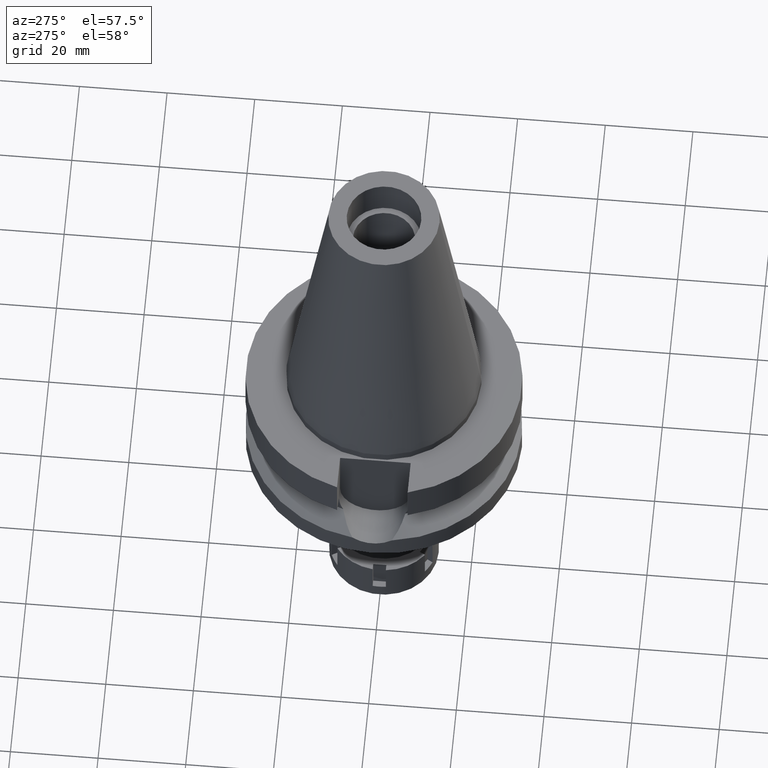
[diagram: clean part render]
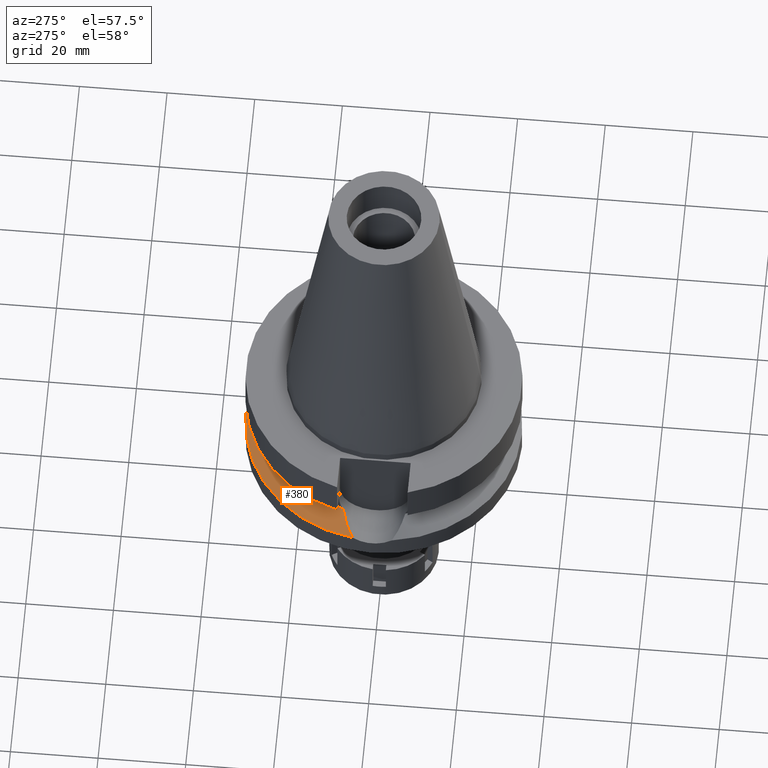
[diagram: same view with one face highlighted and labeled with its STEP entity id]
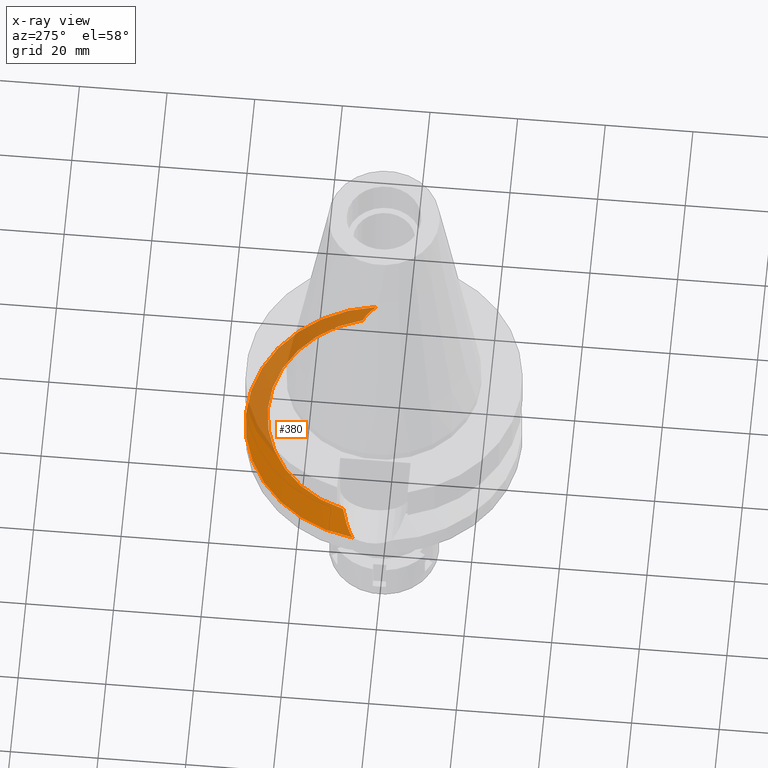
[diagram: x-ray of the same camera — body ghosted, the highlighted face saturated]
A machine part, auxiliary view. The second image highlights one B-rep face of the part: STEP entity #380.
The next image is the same camera in x-ray: the body ghosted, the highlighted face saturated — about 47% of this face is hidden behind the body in this view.
In plain terms, the highlighted conical surface has half-angle 60 deg.
Its self-contained STEP definition (entity closure, byte-faithful):
#8 = CARTESIAN_POINT ( 'NONE',  ( 27.91858543561856720, 6.325525758491624018, -19.97141142201497388 ) ) ;
#107 = ORIENTED_EDGE ( 'NONE', *, *, #3382, .F. ) ;
#115 = DIRECTION ( 'NONE',  ( 0.0000000000000000000, 0.0000000000000000000, -1.000000000000000000 ) ) ;
#133 = CARTESIAN_POINT ( 'NONE',  ( -28.73703696739598712, 5.934423697149298071, -20.38937565646276440 ) ) ;
#171 = CARTESIAN_POINT ( 'NONE',  ( -27.60099090004893441, 6.420590068181098786, -19.80892182263779588 ) ) ;
#200 = ORIENTED_EDGE ( 'NONE', *, *, #1738, .F. ) ;
#380 = ADVANCED_FACE ( 'NONE', ( #2267 ), #3295, .T. ) ;
#416 = AXIS2_PLACEMENT_3D ( 'NONE', #3310, #1082, #1929 ) ;
#471 = CIRCLE ( 'NONE', #3577, 31.50000000000000000 ) ;
#500 = CARTESIAN_POINT ( 'NONE',  ( 0.0000000000000000000, 0.0000000000000000000, -18.74774300138999905 ) ) ;
#539 = CARTESIAN_POINT ( 'NONE',  ( 29.07438431834438930, 5.771792573358817791, -20.56163646526491817 ) ) ;
#540 = DIRECTION ( 'NONE',  ( 0.0000000000000000000, 0.0000000000000000000, -1.000000000000000000 ) ) ;
#542 = VERTEX_POINT ( 'NONE', #1577 ) ;
#546 = B_SPLINE_CURVE_WITH_KNOTS ( 'NONE', 3,
 ( #2434, #3489, #1023, #171, #1588, #1515, #735, #2683, #133, #2958, #2082, #3211, #2376 ),
 .UNSPECIFIED., .F., .F.,
 ( 4, 2, 2, 1, 2, 2, 4 ),
 ( 0.0000000000000000000, 0.2500000000000053291, 0.3750000000000071054, 0.4375000000000073830, 0.4687500000000074385, 0.5000000000000074385, 1.000000000000000000 ),
 .UNSPECIFIED. ) ;
#735 = CARTESIAN_POINT ( 'NONE',  ( -28.43667762748959760, 6.072295167484925038, -20.23599666332561853 ) ) ;
#771 = CIRCLE ( 'NONE', #1233, 26.50000000000000000 ) ;
#875 = CARTESIAN_POINT ( 'NONE',  ( 29.23967737843265269, 5.689334523457333148, -20.64603092103315518 ) ) ;
#1023 = CARTESIAN_POINT ( 'NONE',  ( -26.77035051738581117, 6.728096965327707402, -19.38368961855404393 ) ) ;
#1082 = DIRECTION ( 'NONE',  ( 0.0000000000000000000, 0.0000000000000000000, -1.000000000000000000 ) ) ;
#1233 = AXIS2_PLACEMENT_3D ( 'NONE', #500, #2190, #1268 ) ;
#1268 = DIRECTION ( 'NONE',  ( 0.0000000000000000000, 1.000000000000000000, 0.0000000000000000000 ) ) ;
#1360 = CARTESIAN_POINT ( 'NONE',  ( 29.91795002851479879, 5.321521647012401601, -20.99212821178283761 ) ) ;
#1373 = EDGE_LOOP ( 'NONE', ( #3278, #107, #3487, #200, #3360 ) ) ;
#1515 = CARTESIAN_POINT ( 'NONE',  ( -28.24949849579543582, 6.153820067666307736, -20.14038901395159087 ) ) ;
#1577 = CARTESIAN_POINT ( 'NONE',  ( 31.17899877608999759, 4.485536235554000051, -21.63449434733000132 ) ) ;
#1579 = EDGE_CURVE ( 'NONE', #1729, #3359, #546, .T. ) ;
#1588 = CARTESIAN_POINT ( 'NONE',  ( -27.86694784681845150, 6.315209101825752569, -19.94491663250392932 ) ) ;
#1658 = CARTESIAN_POINT ( 'NONE',  ( 0.0000000000000000000, 0.0000000000000000000, -21.63449434733000132 ) ) ;
#1725 = CARTESIAN_POINT ( 'NONE',  ( 29.71579797467460082, 5.436428754879389480, -20.88902096843967371 ) ) ;
#1729 = VERTEX_POINT ( 'NONE', #3595 ) ;
#1738 = EDGE_CURVE ( 'NONE', #3359, #3182, #2925, .T. ) ;
#1858 = CARTESIAN_POINT ( 'NONE',  ( 31.17899877608999759, 4.485536235554000051, -21.63449434733000132 ) ) ;
#1929 = DIRECTION ( 'NONE',  ( 0.0000000000000000000, -1.000000000000000000, 0.0000000000000000000 ) ) ;
#1952 = CARTESIAN_POINT ( 'NONE',  ( 29.40041076528487451, 5.605569458107493297, -20.72807476309747088 ) ) ;
#2082 = CARTESIAN_POINT ( 'NONE',  ( -29.75852797708337505, 5.446887576693962174, -20.91101521023165688 ) ) ;
#2190 = DIRECTION ( 'NONE',  ( 0.0000000000000000000, 0.0000000000000000000, 1.000000000000000000 ) ) ;
#2267 = FACE_OUTER_BOUND ( 'NONE', #1373, .T. ) ;
#2274 = CARTESIAN_POINT ( 'NONE',  ( 28.90868851675715590, 5.852872233475686414, -20.47702851730223728 ) ) ;
#2376 = CARTESIAN_POINT ( 'NONE',  ( -31.17899877608999759, 4.485536235554000051, -21.63449434733000132 ) ) ;
#2434 = CARTESIAN_POINT ( 'NONE',  ( -25.53175183775000079, 7.097862220092999941, -18.74774300138999905 ) ) ;
#2633 = AXIS2_PLACEMENT_3D ( 'NONE', #1658, #540, #2772 ) ;
#2683 = CARTESIAN_POINT ( 'NONE',  ( -28.61771246999229490, 5.989703077962843736, -20.32844300771601098 ) ) ;
#2701 = CARTESIAN_POINT ( 'NONE',  ( 30.85575552593918047, 4.730770754424877822, -21.46993316088503434 ) ) ;
#2772 = DIRECTION ( 'NONE',  ( -0.9898094849552905306, 0.1423979757318985240, 0.0000000000000000000 ) ) ;
#2824 = CARTESIAN_POINT ( 'NONE',  ( 25.53175183775000079, 7.097862220092999941, -18.74774300138999905 ) ) ;
#2904 = B_SPLINE_CURVE_WITH_KNOTS ( 'NONE', 3,
 ( #1858, #2701, #3055, #1360, #1725, #1952, #875, #539, #3090, #2274, #8, #3594, #2824 ),
 .UNSPECIFIED., .F., .F.,
 ( 4, 2, 2, 1, 2, 2, 4 ),
 ( 0.0000000000000000000, 0.2499999999999954481, 0.3749999999999935052, 0.4374999999999928391, 0.4687499999999927836, 0.4999999999999926725, 1.000000000000000000 ),
 .UNSPECIFIED. ) ;
#2925 = CIRCLE ( 'NONE', #2633, 31.50000000000001421 ) ;
#2951 = VERTEX_POINT ( 'NONE', #3357 ) ;
#2958 = CARTESIAN_POINT ( 'NONE',  ( -28.79779995535993820, 5.905823101358012472, -20.42040356481225061 ) ) ;
#3055 = CARTESIAN_POINT ( 'NONE',  ( 30.50008793277651620, 4.971390304426365425, -21.28888020947157500 ) ) ;
#3090 = CARTESIAN_POINT ( 'NONE',  ( 28.96317568423310362, 5.826462986567769065, -20.50485214873688022 ) ) ;
#3139 = EDGE_CURVE ( 'NONE', #3182, #542, #471, .T. ) ;
#3172 = CARTESIAN_POINT ( 'NONE',  ( 0.0000000000000000000, 0.0000000000000000000, -21.63449434733000132 ) ) ;
#3182 = VERTEX_POINT ( 'NONE', #3559 ) ;
#3211 = CARTESIAN_POINT ( 'NONE',  ( -30.53342311297921441, 4.975314249690878654, -21.30583567614069551 ) ) ;
#3263 = EDGE_CURVE ( 'NONE', #2951, #1729, #771, .T. ) ;
#3278 = ORIENTED_EDGE ( 'NONE', *, *, #3263, .F. ) ;
#3295 = CONICAL_SURFACE ( 'NONE', #416, 29.00000000000000000, 1.047197551196400456 ) ;
#3310 = CARTESIAN_POINT ( 'NONE',  ( 0.0000000000000000000, 0.0000000000000000000, -20.19111867435999841 ) ) ;
#3357 = CARTESIAN_POINT ( 'NONE',  ( 25.53175183775000079, 7.097862220092999941, -18.74774300138999905 ) ) ;
#3359 = VERTEX_POINT ( 'NONE', #3526 ) ;
#3360 = ORIENTED_EDGE ( 'NONE', *, *, #1579, .F. ) ;
#3382 = EDGE_CURVE ( 'NONE', #542, #2951, #2904, .T. ) ;
#3487 = ORIENTED_EDGE ( 'NONE', *, *, #3139, .F. ) ;
#3488 = DIRECTION ( 'NONE',  ( 0.0000000000000000000, 1.000000000000000000, 0.0000000000000000000 ) ) ;
#3489 = CARTESIAN_POINT ( 'NONE',  ( -26.17289753913761885, 6.921622253256868973, -19.07712995616913432 ) ) ;
#3526 = CARTESIAN_POINT ( 'NONE',  ( -31.17899877608999759, 4.485536235554000051, -21.63449434733000132 ) ) ;
#3559 = CARTESIAN_POINT ( 'NONE',  ( 0.0000000000000000000, 31.50000000000000000, -21.63449434733000132 ) ) ;
#3577 = AXIS2_PLACEMENT_3D ( 'NONE', #3172, #115, #3488 ) ;
#3594 = CARTESIAN_POINT ( 'NONE',  ( 26.81235366185419977, 6.745846722648675353, -19.40564889424996764 ) ) ;
#3595 = CARTESIAN_POINT ( 'NONE',  ( -25.53175183775000079, 7.097862220092999941, -18.74774300138999905 ) ) ;